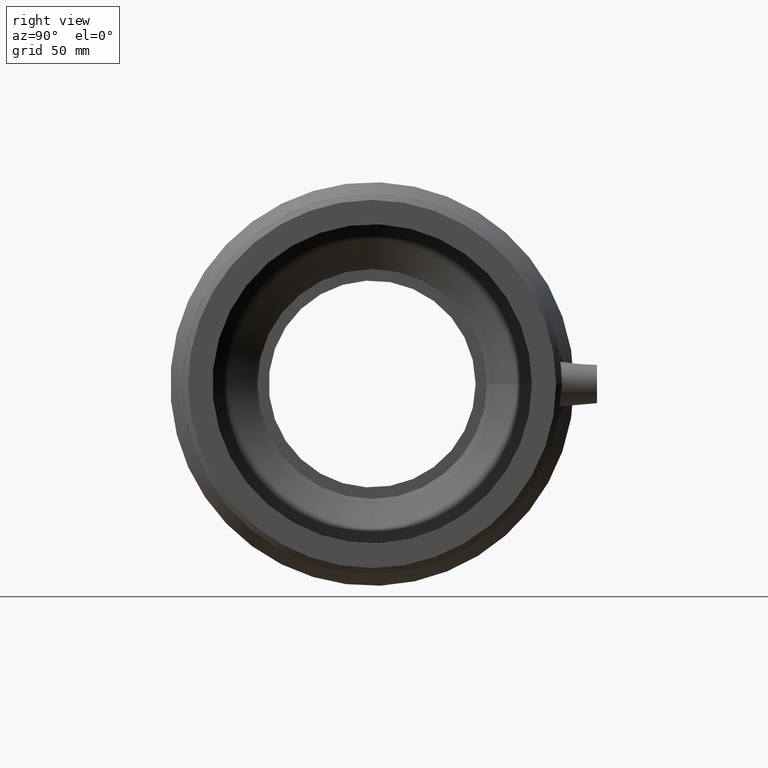
[diagram: clean part render]
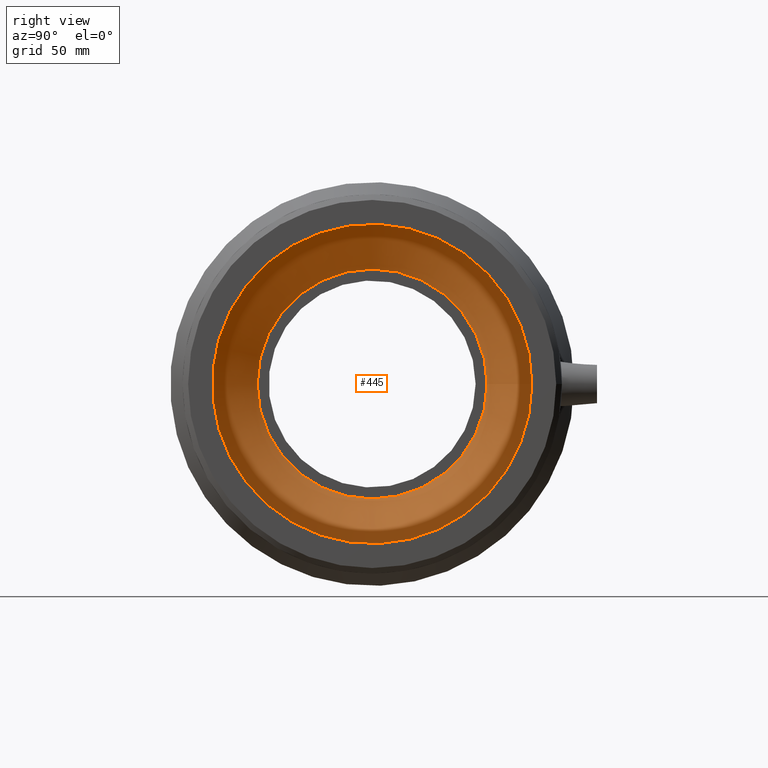
[diagram: same view with one face highlighted and labeled with its STEP entity id]
A machine part, right view. The second image highlights one B-rep face of the part: STEP entity #445.
In plain terms, the highlighted conical surface has half-angle 59.278 deg.
Its self-contained STEP definition (entity closure, byte-faithful):
#30=CONICAL_SURFACE('',#516,53.75,59.2775890477132);
#61=FACE_BOUND('',#184,.T.);
#115=FACE_OUTER_BOUND('',#183,.T.);
#183=EDGE_LOOP('',(#386));
#184=EDGE_LOOP('',(#387));
#228=CIRCLE('',#515,62.5);
#229=CIRCLE('',#517,45.);
#268=VERTEX_POINT('',#861);
#269=VERTEX_POINT('',#864);
#310=EDGE_CURVE('',#268,#268,#228,.T.);
#311=EDGE_CURVE('',#269,#269,#229,.T.);
#386=ORIENTED_EDGE('',*,*,#310,.T.);
#387=ORIENTED_EDGE('',*,*,#311,.F.);
#445=ADVANCED_FACE('',(#115,#61),#30,.F.);
#515=AXIS2_PLACEMENT_3D('',#862,#653,#654);
#516=AXIS2_PLACEMENT_3D('',#863,#655,#656);
#517=AXIS2_PLACEMENT_3D('',#865,#657,#658);
#653=DIRECTION('center_axis',(1.,0.,0.));
#654=DIRECTION('ref_axis',(0.,0.,-1.));
#655=DIRECTION('center_axis',(1.,0.,0.));
#656=DIRECTION('ref_axis',(0.,1.,0.));
#657=DIRECTION('center_axis',(1.,0.,0.));
#658=DIRECTION('ref_axis',(0.,0.,-1.));
#861=CARTESIAN_POINT('',(0.500000000000007,62.5,0.));
#862=CARTESIAN_POINT('Origin',(0.500000000000007,0.,0.));
#863=CARTESIAN_POINT('Origin',(-4.7,0.,0.));
#864=CARTESIAN_POINT('',(-9.9,45.,0.));
#865=CARTESIAN_POINT('Origin',(-9.9,0.,0.));